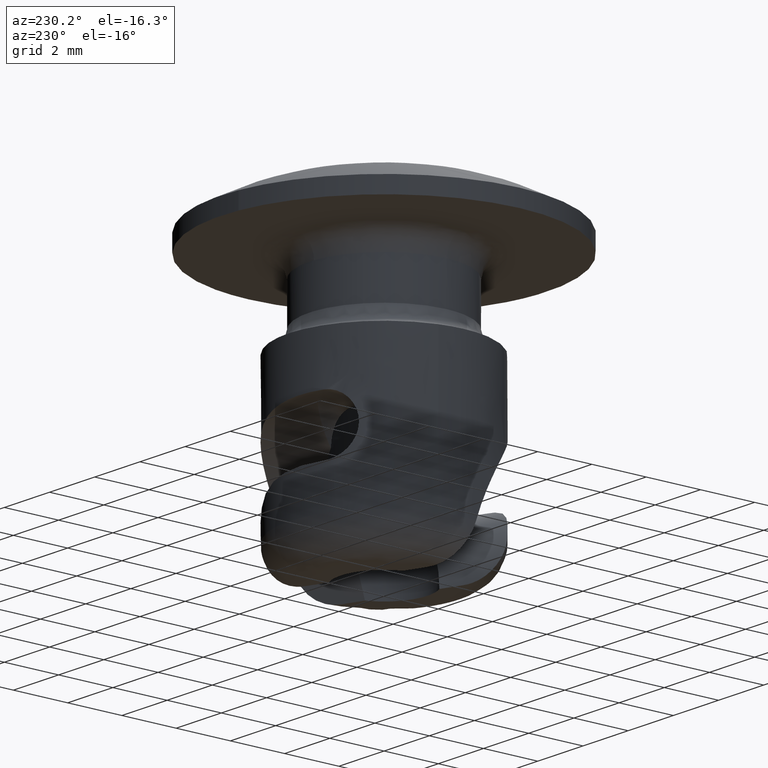
[diagram: clean part render]
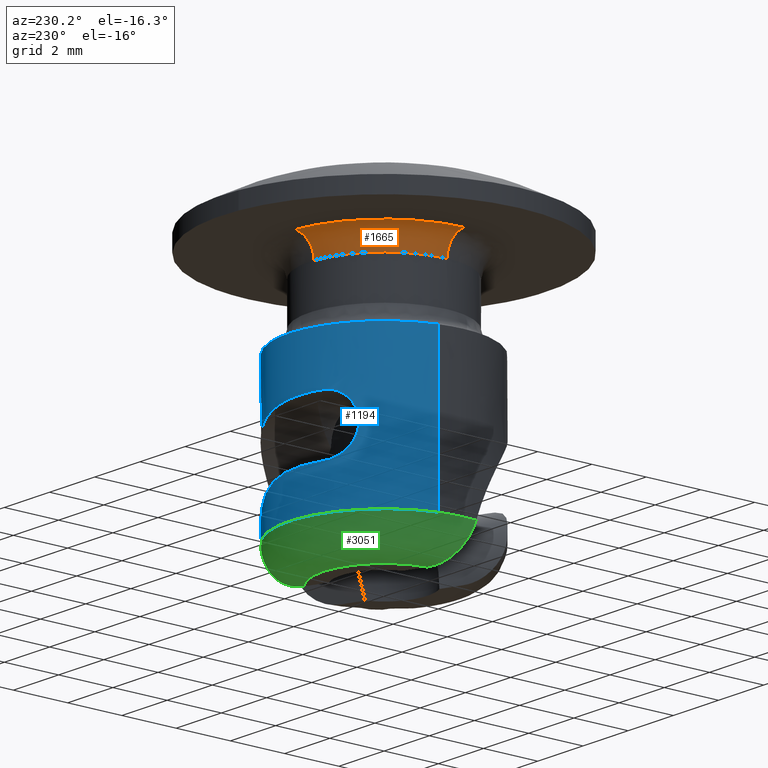
[diagram: same view with three faces highlighted in distinct colors, each labeled with its STEP entity id]
A machine part, auxiliary view with three faces highlighted in distinct colors.
Their STEP definitions:

[orange] entity #1665 — the highlighted face is a freeform B-spline surface patch.
#220=CARTESIAN_POINT('',(-2.749782871560368,-0.034556609689276,5.506410000058892));
#221=VERTEX_POINT('',#220);
#237=CARTESIAN_POINT('',(-2.750000000000000,0.0,5.506410000000090));
#238=VERTEX_POINT('',#237);
#239=CARTESIAN_POINT('',(-2.749782871560368,-0.034556609689276,5.506410000058892));
#240=CARTESIAN_POINT('',(-2.750000000000001,-0.017278986987755,5.506410000000090));
#241=CARTESIAN_POINT('',(-2.750000000000000,0.0,5.506410000000090));
#249=(BOUNDED_CURVE()B_SPLINE_CURVE(2,(#239,#240,#241),.UNSPECIFIED.,.F.,.U.)B_SPLINE_CURVE_WITH_KNOTS((3,3),(0.997784295920442,1.0),.UNSPECIFIED.)CURVE()GEOMETRIC_REPRESENTATION_ITEM()RATIONAL_B_SPLINE_CURVE((0.994854295641052,0.997404141200800,1.0))REPRESENTATION_ITEM(''));
#250=EDGE_CURVE('',#221,#238,#249,.T.);
#252=CARTESIAN_POINT('',(-0.191766441840072,2.743305603060657,5.506410000058894));
#253=VERTEX_POINT('',#252);
#254=CARTESIAN_POINT('',(-2.750000000000000,0.0,5.506410000000090));
#255=CARTESIAN_POINT('',(-2.750000000000001,2.564476329968949,5.506410000000090));
#256=CARTESIAN_POINT('',(-0.191766441840072,2.743305603060658,5.506410000058894));
#264=(BOUNDED_CURVE()B_SPLINE_CURVE(2,(#254,#255,#256),.UNSPECIFIED.,.F.,.U.)B_SPLINE_CURVE_WITH_KNOTS((3,3),(0.0,0.237833686534181),.UNSPECIFIED.)CURVE()GEOMETRIC_REPRESENTATION_ITEM()RATIONAL_B_SPLINE_CURVE((1.0,0.721360504034936,0.972879876385049))REPRESENTATION_ITEM(''));
#265=EDGE_CURVE('',#238,#253,#264,.T.);
#1546=CARTESIAN_POINT('',(-0.244066380535576,3.491479858247768,6.256410000000090));
#1547=VERTEX_POINT('',#1546);
#1548=CARTESIAN_POINT('',(-0.191766441840072,2.743305603060657,5.506410000058894));
#1549=CARTESIAN_POINT('',(-0.191766441840667,2.743305603178510,6.256409999616545));
#1550=CARTESIAN_POINT('',(-0.244066380535576,3.491479858247769,6.256410000000090));
#1558=(BOUNDED_CURVE()B_SPLINE_CURVE(2,(#1548,#1549,#1550),.UNSPECIFIED.,.F.,.U.)B_SPLINE_CURVE_WITH_KNOTS((3,3),(-1.725134643121006,-0.274865357242618),.UNSPECIFIED.)CURVE()GEOMETRIC_REPRESENTATION_ITEM()RATIONAL_B_SPLINE_CURVE((0.863472075316618,0.610566959980755,0.863472075189796))REPRESENTATION_ITEM(''));
#1559=EDGE_CURVE('',#253,#1547,#1558,.T.);
#1578=CARTESIAN_POINT('',(-3.499723654619406,-0.043981139611119,6.256410000000090));
#1579=VERTEX_POINT('',#1578);
#1595=CARTESIAN_POINT('',(-2.749782871560368,-0.034556609689276,5.506410000058892));
#1596=CARTESIAN_POINT('',(-2.749782871678087,-0.034556609680698,6.256409999812695));
#1597=CARTESIAN_POINT('',(-3.499723654619406,-0.043981139611119,6.256410000000090));
#1605=(BOUNDED_CURVE()B_SPLINE_CURVE(2,(#1595,#1596,#1597),.UNSPECIFIED.,.F.,.U.)B_SPLINE_CURVE_WITH_KNOTS((3,3),(-1.725134643121012,-0.274865356974418),.UNSPECIFIED.)CURVE()GEOMETRIC_REPRESENTATION_ITEM()RATIONAL_B_SPLINE_CURVE((0.883342149595686,0.624617224201979,0.883342149561637))REPRESENTATION_ITEM(''));
#1606=EDGE_CURVE('',#221,#1579,#1605,.T.);
#1614=CARTESIAN_POINT('',(-2.751598198290943,-0.034579422948556,5.454257251492286));
#1615=CARTESIAN_POINT('',(-2.784253395302196,2.563901800832275,5.454257251492287));
#1616=CARTESIAN_POINT('',(-0.191893040463748,2.745116653687233,5.454257251492285));
#1617=CARTESIAN_POINT('',(-2.691634693459497,-0.033825859657109,6.314562997459585));
#1618=CARTESIAN_POINT('',(-2.723578260384289,2.508028622067640,6.314562997459587));
#1619=CARTESIAN_POINT('',(-0.187711260120195,2.685294396270255,6.314562997459587));
#1620=CARTESIAN_POINT('',(-3.551872496394803,-0.044636495760342,6.254594515223158));
#1621=CARTESIAN_POINT('',(-3.594025124711199,3.309586514299048,6.254594515223159));
#1622=CARTESIAN_POINT('',(-0.247703175956468,3.543505860587885,6.254594515223158));
#1630=(BOUNDED_SURFACE()B_SPLINE_SURFACE(2,2,((#1614,#1617,#1620),(#1615,#1618,#1621),(#1616,#1619,#1622)),.UNSPECIFIED.,.F.,.F.,.U.)B_SPLINE_SURFACE_WITH_KNOTS((3,3),(3,3),(0.0,5.648433148033502),(0.0,1.366780487333569),.UNSPECIFIED.)GEOMETRIC_REPRESENTATION_ITEM()RATIONAL_B_SPLINE_SURFACE(((0.910479748892753,0.597479566409842,0.910479865848865),(0.654473338347797,0.429481761564039,0.654473422418483),(0.889999236049156,0.584039742022178,0.889999350374435)))REPRESENTATION_ITEM('')SURFACE());
#1631=ORIENTED_EDGE('',*,*,#265,.F.);
#1632=ORIENTED_EDGE('',*,*,#250,.F.);
#1633=ORIENTED_EDGE('',*,*,#1606,.T.);
#1634=CARTESIAN_POINT('',(-3.500000000000000,0.0,6.256410000000090));
#1635=VERTEX_POINT('',#1634);
#1636=CARTESIAN_POINT('',(-3.499723654619406,-0.043981139611119,6.256410000000090));
#1637=CARTESIAN_POINT('',(-3.500000000000001,-0.021991437992178,6.256410000000090));
#1638=CARTESIAN_POINT('',(-3.500000000000000,0.0,6.256410000000090));
#1646=(BOUNDED_CURVE()B_SPLINE_CURVE(2,(#1636,#1637,#1638),.UNSPECIFIED.,.F.,.U.)B_SPLINE_CURVE_WITH_KNOTS((3,3),(0.997784295919662,1.0),.UNSPECIFIED.)CURVE()GEOMETRIC_REPRESENTATION_ITEM()RATIONAL_B_SPLINE_CURVE((0.994854295639256,0.997404141199886,1.0))REPRESENTATION_ITEM(''));
#1647=EDGE_CURVE('',#1579,#1635,#1646,.T.);
#1648=ORIENTED_EDGE('',*,*,#1647,.T.);
#1649=CARTESIAN_POINT('',(-3.500000000000000,0.0,6.256410000000090));
#1650=CARTESIAN_POINT('',(-3.500000000000000,3.263878965367756,6.256410000000090));
#1651=CARTESIAN_POINT('',(-0.244066380535576,3.491479858247768,6.256410000000090));
#1659=(BOUNDED_CURVE()B_SPLINE_CURVE(2,(#1649,#1650,#1651),.UNSPECIFIED.,.F.,.U.)B_SPLINE_CURVE_WITH_KNOTS((3,3),(0.0,0.237833686531696),.UNSPECIFIED.)CURVE()GEOMETRIC_REPRESENTATION_ITEM()RATIONAL_B_SPLINE_CURVE((1.0,0.721360504037847,0.972879876379794))REPRESENTATION_ITEM(''));
#1660=EDGE_CURVE('',#1635,#1547,#1659,.T.);
#1661=ORIENTED_EDGE('',*,*,#1660,.T.);
#1662=ORIENTED_EDGE('',*,*,#1559,.F.);
#1663=EDGE_LOOP('',(#1631,#1632,#1633,#1648,#1661,#1662));
#1664=FACE_OUTER_BOUND('',#1663,.T.);
#1665=ADVANCED_FACE('',(#1664),#1630,.F.);

[blue] entity #1194 — the highlighted face is a freeform B-spline surface patch.
#952=CARTESIAN_POINT('',(-3.398815725841810,0.835494860409331,3.395160075000097));
#953=CARTESIAN_POINT('',(-3.246307044217863,1.455904308741450,3.395160075000097));
#954=CARTESIAN_POINT('',(-2.884441870294542,1.982421523514038,3.395160075000097));
#955=CARTESIAN_POINT('',(-0.902020346780504,4.866863393808579,3.395160075000097));
#956=CARTESIAN_POINT('',(1.982421523514038,2.884441870294542,3.395160075000097));
#957=CARTESIAN_POINT('',(4.866863393808579,0.902020346780504,3.395160075000097));
#958=CARTESIAN_POINT('',(2.884441870294542,-1.982421523514038,3.395160075000097));
#959=CARTESIAN_POINT('',(-3.398815725841810,0.835494860409331,-2.435811826875176));
#960=CARTESIAN_POINT('',(-3.246307044217863,1.455904308741450,-2.435811826875176));
#961=CARTESIAN_POINT('',(-2.884441870294542,1.982421523514038,-2.435811826875176));
#962=CARTESIAN_POINT('',(-0.902020346780504,4.866863393808579,-2.435811826875176));
#963=CARTESIAN_POINT('',(1.982421523514038,2.884441870294542,-2.435811826875176));
#964=CARTESIAN_POINT('',(4.866863393808579,0.902020346780504,-2.435811826875176));
#965=CARTESIAN_POINT('',(2.884441870294542,-1.982421523514038,-2.435811826875176));
#973=(BOUNDED_SURFACE()B_SPLINE_SURFACE(2,1,((#952,#959),(#953,#960),(#954,#961),(#955,#962),(#956,#963),(#957,#964),(#958,#965)),.UNSPECIFIED.,.F.,.F.,.U.)B_SPLINE_SURFACE_WITH_KNOTS((3,2,2,3),(2,2),(0.0,1.391757569573599,7.190747442796928,12.989737316020260),(0.0,5.830971901875274),.UNSPECIFIED.)GEOMETRIC_REPRESENTATION_ITEM()RATIONAL_B_SPLINE_SURFACE(((0.893152553776853,0.893152553776853),(0.929705627484771,0.929705627484771),(1.0,1.0),(0.707106781186548,0.707106781186548),(1.0,1.0),(0.707106781186548,0.707106781186548),(1.0,1.0)))REPRESENTATION_ITEM('')SURFACE());
#974=CARTESIAN_POINT('',(-3.398816158178961,0.835493101646163,3.256410000000096));
#975=VERTEX_POINT('',#974);
#976=CARTESIAN_POINT('',(3.498894662445767,0.087955334072597,3.256410000000090));
#977=VERTEX_POINT('',#976);
#978=CARTESIAN_POINT('',(-3.398816158178961,0.835493101646163,3.256410000000096));
#979=CARTESIAN_POINT('',(-2.743830119141661,3.499999999999999,3.256410000000090));
#980=CARTESIAN_POINT('',(0.0,3.500000000000000,3.256410000000090));
#981=CARTESIAN_POINT('',(3.413122566589230,3.500000000000000,3.256410000000091));
#982=CARTESIAN_POINT('',(3.498894662445766,0.087955334072597,3.256410000000091));
#990=(BOUNDED_CURVE()B_SPLINE_CURVE(2,(#978,#979,#980,#981,#982),.UNSPECIFIED.,.F.,.U.)B_SPLINE_CURVE_WITH_KNOTS((3,2,3),(0.040772388621164,0.250000000000000,0.495579891767602),.UNSPECIFIED.)CURVE()GEOMETRIC_REPRESENTATION_ITEM()RATIONAL_B_SPLINE_CURVE((0.920045217319222,0.754874605754410,1.0,0.712285260097311,0.989826157676590))REPRESENTATION_ITEM(''));
#991=EDGE_CURVE('',#975,#977,#990,.T.);
#992=ORIENTED_EDGE('',*,*,#991,.T.);
#993=CARTESIAN_POINT('',(3.500000000000000,0.0,3.256410000000090));
#994=VERTEX_POINT('',#993);
#995=CARTESIAN_POINT('',(3.498894662445767,0.087955334072597,3.256410000000090));
#996=CARTESIAN_POINT('',(3.500000000000000,0.043984612453891,3.256410000000091));
#997=CARTESIAN_POINT('',(3.500000000000000,0.0,3.256410000000090));
#1005=(BOUNDED_CURVE()B_SPLINE_CURVE(2,(#995,#996,#997),.UNSPECIFIED.,.F.,.U.)B_SPLINE_CURVE_WITH_KNOTS((3,3),(0.495579891767602,0.500000000000000),.UNSPECIFIED.)CURVE()GEOMETRIC_REPRESENTATION_ITEM()RATIONAL_B_SPLINE_CURVE((0.989826157676591,0.994821521089236,1.0))REPRESENTATION_ITEM(''));
#1006=EDGE_CURVE('',#977,#994,#1005,.T.);
#1007=ORIENTED_EDGE('',*,*,#1006,.T.);
#1008=CARTESIAN_POINT('',(2.884442388677703,-1.982420769254069,3.256410000000089));
#1009=VERTEX_POINT('',#1008);
#1010=CARTESIAN_POINT('',(3.500000000000000,0.0,3.256410000000090));
#1011=CARTESIAN_POINT('',(3.500000000000000,-1.086777680293766,3.256410000000090));
#1012=CARTESIAN_POINT('',(2.884442388677703,-1.982420769254069,3.256410000000089));
#1020=(BOUNDED_CURVE()B_SPLINE_CURVE(2,(#1010,#1011,#1012),.UNSPECIFIED.,.F.,.U.)B_SPLINE_CURVE_WITH_KNOTS((3,3),(0.500000000000000,0.597270521430131),.UNSPECIFIED.)CURVE()GEOMETRIC_REPRESENTATION_ITEM()RATIONAL_B_SPLINE_CURVE((1.0,0.886040495530665,0.860760194434542))REPRESENTATION_ITEM(''));
#1021=EDGE_CURVE('',#994,#1009,#1020,.T.);
#1022=ORIENTED_EDGE('',*,*,#1021,.T.);
#1023=CARTESIAN_POINT('',(2.884441633109506,-1.982421868620396,-2.293592999999901));
#1024=VERTEX_POINT('',#1023);
#1025=CARTESIAN_POINT('',(2.884442388677703,-1.982420769254069,3.256410000000089));
#1026=CARTESIAN_POINT('',(2.884441633109506,-1.982421868620396,-2.293592999999901));
#1027=QUASI_UNIFORM_CURVE('',1,(#1025,#1026),.UNSPECIFIED.,.F.,.U.);
#1028=EDGE_CURVE('',#1009,#1024,#1027,.T.);
#1029=ORIENTED_EDGE('',*,*,#1028,.T.);
#1030=CARTESIAN_POINT('',(3.462048954059370,0.514020466223215,-2.293592999999900));
#1031=VERTEX_POINT('',#1030);
#1032=CARTESIAN_POINT('',(3.462048954059370,0.514020466223215,-2.293592999999900));
#1033=CARTESIAN_POINT('',(3.664243010850260,-0.847804147440930,-2.293592999999900));
#1034=CARTESIAN_POINT('',(2.884441633109506,-1.982421868620396,-2.293592999999901));
#1042=(BOUNDED_CURVE()B_SPLINE_CURVE(2,(#1032,#1033,#1034),.UNSPECIFIED.,.F.,.U.)B_SPLINE_CURVE_WITH_KNOTS((3,3),(0.0,0.296886411692265),.UNSPECIFIED.)CURVE()GEOMETRIC_REPRESENTATION_ITEM()RATIONAL_B_SPLINE_CURVE((1.0,0.886746299966919,0.907986538388612))REPRESENTATION_ITEM(''));
#1043=EDGE_CURVE('',#1031,#1024,#1042,.T.);
#1044=ORIENTED_EDGE('',*,*,#1043,.F.);
#1045=CARTESIAN_POINT('',(-1.254288169734664,3.267531359796385,1.356406999995346));
#1046=VERTEX_POINT('',#1045);
#1047=CARTESIAN_POINT('',(-1.254288169734664,3.267531359796385,1.356406999995346));
#1048=CARTESIAN_POINT('',(-1.100683175382410,3.326494811410994,1.356406998907062));
#1049=CARTESIAN_POINT('',(-0.944790533507293,3.373972347839948,1.354254622283116));
#1050=CARTESIAN_POINT('',(-0.628633328105598,3.446902768426820,1.345395252280576));
#1051=CARTESIAN_POINT('',(-0.468367986013106,3.472352183352891,1.338690151162170));
#1052=CARTESIAN_POINT('',(-0.224669569724567,3.493733411170516,1.324201752360662));
#1053=CARTESIAN_POINT('',(-0.142545136104687,3.498050934913397,1.318596453628986));
#1054=CARTESIAN_POINT('',(0.020886090782546,3.500891776431745,1.305763019858450));
#1055=CARTESIAN_POINT('',(0.102140809863996,3.499444540438764,1.298546635512569));
#1056=CARTESIAN_POINT('',(0.344509582711421,3.486759597965622,1.274156262528755));
#1057=CARTESIAN_POINT('',(0.504236306555088,3.467210868745162,1.254271949412457));
#1058=CARTESIAN_POINT('',(0.740848327356909,3.421636322163811,1.217125497808508));
#1059=CARTESIAN_POINT('',(0.819220659129711,3.403727863453842,1.203516045418842));
#1060=CARTESIAN_POINT('',(0.974909943791326,3.362445011936071,1.173425822631740));
#1061=CARTESIAN_POINT('',(1.052321558858645,3.339008945847857,1.156905212574422));
#1062=CARTESIAN_POINT('',(1.278833701294926,3.261905881412759,1.103342238811839));
#1063=CARTESIAN_POINT('',(1.423604441200144,3.201146349320471,1.062073015453533));
#1064=CARTESIAN_POINT('',(1.700795407085736,3.062887940818047,0.965982079269239));
#1065=CARTESIAN_POINT('',(1.833286937047265,2.985327743126643,0.911129322560085));
#1066=CARTESIAN_POINT('',(2.085292452059911,2.815080481409319,0.785031404627501));
#1067=CARTESIAN_POINT('',(2.201634034771801,2.724572951189034,0.715368523373225));
#1068=CARTESIAN_POINT('',(2.416769619053139,2.535688229620949,0.561723737162134));
#1069=CARTESIAN_POINT('',(2.515554343379844,2.437298702059449,0.477744137820165));
#1070=CARTESIAN_POINT('',(2.651509271590506,2.285630818190037,0.340112871557593));
#1071=CARTESIAN_POINT('',(2.694798760009466,2.234352972746144,0.292240862819736));
#1072=CARTESIAN_POINT('',(2.776355931514163,2.132163526869883,0.193871461890681));
#1073=CARTESIAN_POINT('',(2.814790837875909,2.081073183510016,0.143216195046828));
#1074=CARTESIAN_POINT('',(2.923641800598898,1.928204046839833,-0.013163365357319));
#1075=CARTESIAN_POINT('',(2.987620403222888,1.826832213530367,-0.123295952511870));
#1076=CARTESIAN_POINT('',(3.072625961218844,1.676981694885327,-0.297416691746468));
#1077=CARTESIAN_POINT('',(3.099153561996510,1.627349909661012,-0.357004841036116));
#1078=CARTESIAN_POINT('',(3.148720474550142,1.529241610229750,-0.478941169849443));
#1079=CARTESIAN_POINT('',(3.171603378818524,1.481084083492248,-0.540888731516742));
#1080=CARTESIAN_POINT('',(3.277607651997858,1.245044962272204,-0.855448795942488));
#1081=CARTESIAN_POINT('',(3.335861178486806,1.071361401180477,-1.122418410192950));
#1082=CARTESIAN_POINT('',(3.398925770687722,0.838898008624155,-1.545777836786355));
#1083=CARTESIAN_POINT('',(3.415843330821927,0.765997516758701,-1.690956645037936));
#1084=CARTESIAN_POINT('',(3.443319145921051,0.631103094378931,-1.988293316062864));
#1085=CARTESIAN_POINT('',(3.453815021790554,0.569477940141505,-2.139592664110972));
#1086=CARTESIAN_POINT('',(3.462048954059370,0.514020466223215,-2.293592999999900));
#1087=B_SPLINE_CURVE_WITH_KNOTS('',3,(#1047,#1048,#1049,#1050,#1051,#1052,#1053,#1054,#1055,#1056,#1057,#1058,#1059,#1060,#1061,#1062,#1063,#1064,#1065,#1066,#1067,#1068,#1069,#1070,#1071,#1072,#1073,#1074,#1075,#1076,#1077,#1078,#1079,#1080,#1081,#1082,#1083,#1084,#1085,#1086),.UNSPECIFIED.,.F.,.U.,(4,2,2,2,2,2,2,2,2,2,2,2,2,2,2,2,2,2,2,4),(0.0,0.062500000000000,0.125000000000000,0.156250000000000,0.187500000000000,0.250000000000000,0.281250000000000,0.312500000000000,0.375000000000000,0.437500000000000,0.499999999999999,0.562499999999999,0.593749999999999,0.624999999999999,0.687499999999999,0.718749999999999,0.749999999999999,0.875000000000000,0.937500000000000,1.0),.UNSPECIFIED.);
#1088=EDGE_CURVE('',#1046,#1031,#1087,.T.);
#1089=ORIENTED_EDGE('',*,*,#1088,.F.);
#1090=CARTESIAN_POINT('',(-1.254288169733266,3.267531359792745,-0.743592999981045));
#1091=VERTEX_POINT('',#1090);
#1092=CARTESIAN_POINT('',(-1.254288169734664,3.267531359796385,1.356406999995346));
#1093=CARTESIAN_POINT('',(-1.318640292679726,3.242828886395304,1.356406999998266));
#1094=CARTESIAN_POINT('',(-1.383250967555114,3.215771566229313,1.349446387518911));
#1095=CARTESIAN_POINT('',(-1.506396947816417,3.159958582168519,1.322383416513524));
#1096=CARTESIAN_POINT('',(-1.565593721963290,3.130981195074045,1.302385653341678));
#1097=CARTESIAN_POINT('',(-1.650975945108165,3.086310121360740,1.262556716373821));
#1098=CARTESIAN_POINT('',(-1.678753664558891,3.071272873035793,1.247658640695796));
#1099=CARTESIAN_POINT('',(-1.732041834886683,3.041539414362044,1.215217216255150));
#1100=CARTESIAN_POINT('',(-1.783357937091223,3.011994050345980,1.179999036644839));
#1101=CARTESIAN_POINT('',(-1.830909973004578,2.983034465668133,1.139303816492363));
#1102=CARTESIAN_POINT('',(-1.876617923764876,2.954493378028794,1.095822597766510));
#1103=CARTESIAN_POINT('',(-1.898643800951814,2.940368223328008,1.072563898663637));
#1104=CARTESIAN_POINT('',(-1.960784565403558,2.899616901363788,0.999839552490939));
#1105=CARTESIAN_POINT('',(-1.997313057947114,2.874417805809055,0.947250069384687));
#1106=CARTESIAN_POINT('',(-2.061201922230871,2.828954543570813,0.833820281025321));
#1107=CARTESIAN_POINT('',(-2.088680221637820,2.808587239747783,0.772353782685355));
#1108=CARTESIAN_POINT('',(-2.132297222680015,2.775618112364556,0.645845959865920));
#1109=CARTESIAN_POINT('',(-2.148792449089345,2.762769034094861,0.580375322759702));
#1110=CARTESIAN_POINT('',(-2.165556062767151,2.749621313975188,0.478701182768291));
#1111=CARTESIAN_POINT('',(-2.169803205236735,2.746264146157594,0.444066258757339));
#1112=CARTESIAN_POINT('',(-2.175393383642448,2.741838130949924,0.375172765964497));
#1113=CARTESIAN_POINT('',(-2.178156509214443,2.739640101456890,0.306343781090040));
#1114=CARTESIAN_POINT('',(-2.175389909863488,2.741840864207265,0.237641426687876));
#1115=CARTESIAN_POINT('',(-2.169827383376525,2.746245020190678,0.169002869282833));
#1116=CARTESIAN_POINT('',(-2.165624451942747,2.749567523962095,0.134576173082601));
#1117=CARTESIAN_POINT('',(-2.148793976944024,2.762768138546281,0.032351411708997));
#1118=CARTESIAN_POINT('',(-2.132225841837084,2.775673251829054,-0.033291504237887));
#1119=CARTESIAN_POINT('',(-2.099475268970722,2.800426905912668,-0.128203132351538));
#1120=CARTESIAN_POINT('',(-2.087231008479274,2.809582339385131,-0.159243858528314));
#1121=CARTESIAN_POINT('',(-2.059973351040212,2.829628243700290,-0.220114977656545));
#1122=CARTESIAN_POINT('',(-2.045080289626168,2.840428204183158,-0.249652294240931));
#1123=CARTESIAN_POINT('',(-1.997069251679307,2.874588231476546,-0.334821954553750));
#1124=CARTESIAN_POINT('',(-1.960488793194713,2.899817264408992,-0.387422239855869));
#1125=CARTESIAN_POINT('',(-1.898315910148563,2.940580014908368,-0.460108073164582));
#1126=CARTESIAN_POINT('',(-1.876274708996551,2.954711433240136,-0.483358309709831));
#1127=CARTESIAN_POINT('',(-1.830548110955519,2.983256618331258,-0.526810471620576));
#1128=CARTESIAN_POINT('',(-1.806774986086904,2.997730425912688,-0.547132188705154));
#1129=CARTESIAN_POINT('',(-1.732677358652038,3.041565945032689,-0.603968311445947));
#1130=CARTESIAN_POINT('',(-1.679505047946575,3.071386434325273,-0.636443901954321));
#1131=CARTESIAN_POINT('',(-1.565317312642757,3.131123368022442,-0.689691187936058));
#1132=CARTESIAN_POINT('',(-1.506098562849207,3.160096911068468,-0.709645140379400));
#1133=CARTESIAN_POINT('',(-1.413986624371495,3.201839809888798,-0.729872725705113));
#1134=CARTESIAN_POINT('',(-1.382732743893786,3.215468949790660,-0.734985952051769));
#1135=CARTESIAN_POINT('',(-1.319075308918158,3.242102826485668,-0.741857015856361));
#1136=CARTESIAN_POINT('',(-1.286590389170131,3.255131695577767,-0.743593000002559));
#1137=CARTESIAN_POINT('',(-1.254288169733266,3.267531359792745,-0.743592999981045));
#1138=B_SPLINE_CURVE_WITH_KNOTS('',3,(#1092,#1093,#1094,#1095,#1096,#1097,#1098,#1099,#1100,#1101,#1102,#1103,#1104,#1105,#1106,#1107,#1108,#1109,#1110,#1111,#1112,#1113,#1114,#1115,#1116,#1117,#1118,#1119,#1120,#1121,#1122,#1123,#1124,#1125,#1126,#1127,#1128,#1129,#1130,#1131,#1132,#1133,#1134,#1135,#1136,#1137),.UNSPECIFIED.,.F.,.U.,(4,2,2,2,1,2,2,2,2,2,2,1,2,2,2,2,2,2,2,2,2,2,2,4),(0.0,0.062500000000000,0.125000000000000,0.156250000000000,0.187500000000000,0.218750000000000,0.250000000000000,0.312500000000000,0.375000000000000,0.437500000000000,0.468750000000000,0.500000000000000,0.531250000000000,0.562500000000000,0.625000000000000,0.656250000000000,0.687500000000000,0.750000000000000,0.781250000000000,0.812500000000000,0.875000000000000,0.937500000000000,0.968750000000000,1.0),.UNSPECIFIED.);
#1139=EDGE_CURVE('',#1046,#1091,#1138,.T.);
#1140=ORIENTED_EDGE('',*,*,#1139,.T.);
#1141=CARTESIAN_POINT('',(2.494594157352935,2.454994906328830,-2.293593000000170));
#1142=VERTEX_POINT('',#1141);
#1143=CARTESIAN_POINT('',(-1.254288169733266,3.267531359792745,-0.743592999981045));
#1144=CARTESIAN_POINT('',(-1.075116558128016,3.336308919381501,-0.743593001254240));
#1145=CARTESIAN_POINT('',(-0.892813837075880,3.389494553560205,-0.746453562931658));
#1146=CARTESIAN_POINT('',(-0.522261360808002,3.465982248554573,-0.759133667993743));
#1147=CARTESIAN_POINT('',(-0.333875025082096,3.489285430373020,-0.768942637021273));
#1148=CARTESIAN_POINT('',(0.048352543838576,3.504889067929446,-0.800264496639449));
#1149=CARTESIAN_POINT('',(0.236705209604217,3.496966781243916,-0.821370517473894));
#1150=CARTESIAN_POINT('',(0.607111760752527,3.451988026533865,-0.880781714174702));
#1151=CARTESIAN_POINT('',(0.789362252970535,3.414848219646579,-0.919082405920578));
#1152=CARTESIAN_POINT('',(1.145242480868056,3.312506722959716,-1.022598128103440));
#1153=CARTESIAN_POINT('',(1.312794088046505,3.249063239057828,-1.086153337552350));
#1154=CARTESIAN_POINT('',(1.547961798543114,3.140266602137924,-1.204897958632514));
#1155=CARTESIAN_POINT('',(1.623650613504035,3.101726075586596,-1.248394536573484));
#1156=CARTESIAN_POINT('',(1.769444056655930,3.020929276409970,-1.344400050151997));
#1157=CARTESIAN_POINT('',(1.838378427837772,2.979315627676157,-1.396171730781845));
#1158=CARTESIAN_POINT('',(2.032698235562576,2.853412920724831,-1.562324709383985));
#1159=CARTESIAN_POINT('',(2.146254359804557,2.767723364678925,-1.687888717089809));
#1160=CARTESIAN_POINT('',(2.270168294436041,2.664090781103838,-1.865327664543209));
#1161=CARTESIAN_POINT('',(2.294027547229279,2.643550320032409,-1.901833103648971));
#1162=CARTESIAN_POINT('',(2.339515052330367,2.603380495031388,-1.976154201304011));
#1163=CARTESIAN_POINT('',(2.361210279974833,2.583695873577137,-2.014062328266627));
#1164=CARTESIAN_POINT('',(2.423318331190845,2.526009041810384,-2.130022386037288));
#1165=CARTESIAN_POINT('',(2.460761208343860,2.489373583329972,-2.210305812590468));
#1166=CARTESIAN_POINT('',(2.494594157352935,2.454994906328830,-2.293593000000170));
#1167=B_SPLINE_CURVE_WITH_KNOTS('',3,(#1143,#1144,#1145,#1146,#1147,#1148,#1149,#1150,#1151,#1152,#1153,#1154,#1155,#1156,#1157,#1158,#1159,#1160,#1161,#1162,#1163,#1164,#1165,#1166),.UNSPECIFIED.,.F.,.U.,(4,2,2,2,2,2,2,2,2,2,2,4),(0.0,0.125000000000000,0.250000000000000,0.375000000000000,0.500000000000000,0.625000000000000,0.687500000000000,0.750000000000000,0.875000000000000,0.906250000000000,0.937500000000000,1.0),.UNSPECIFIED.);
#1168=EDGE_CURVE('',#1091,#1142,#1167,.T.);
#1169=ORIENTED_EDGE('',*,*,#1168,.T.);
#1170=CARTESIAN_POINT('',(-3.398816141377393,0.835493169995682,-2.293592999999918));
#1171=VERTEX_POINT('',#1170);
#1172=CARTESIAN_POINT('',(-3.398816141377393,0.835493169995682,-2.293592999999918));
#1173=CARTESIAN_POINT('',(-3.011913933969780,2.409425207860055,-2.293592999999901));
#1174=CARTESIAN_POINT('',(-1.561331248175789,3.132450276296470,-2.293592999999900));
#1175=CARTESIAN_POINT('',(0.712513817310259,4.265820335230386,-2.293592999999900));
#1176=CARTESIAN_POINT('',(2.494594157352935,2.454994906328830,-2.293593000000170));
#1184=(BOUNDED_CURVE()B_SPLINE_CURVE(2,(#1172,#1173,#1174,#1175,#1176),.UNSPECIFIED.,.F.,.U.)B_SPLINE_CURVE_WITH_KNOTS((3,2,3),(0.157367413092129,0.500000000000000,1.0),.UNSPECIFIED.)CURVE()GEOMETRIC_REPRESENTATION_ITEM()RATIONAL_B_SPLINE_CURVE((0.917725445186630,0.869295438622348,1.0,0.809264258024592,1.0))REPRESENTATION_ITEM(''));
#1185=EDGE_CURVE('',#1171,#1142,#1184,.T.);
#1186=ORIENTED_EDGE('',*,*,#1185,.F.);
#1187=CARTESIAN_POINT('',(-3.398816158178961,0.835493101646163,3.256410000000096));
#1188=CARTESIAN_POINT('',(-3.398816141377393,0.835493169995682,-2.293592999999918));
#1189=QUASI_UNIFORM_CURVE('',1,(#1187,#1188),.UNSPECIFIED.,.F.,.U.);
#1190=EDGE_CURVE('',#975,#1171,#1189,.T.);
#1191=ORIENTED_EDGE('',*,*,#1190,.F.);
#1192=EDGE_LOOP('',(#992,#1007,#1022,#1029,#1044,#1089,#1140,#1169,#1186,#1191));
#1193=FACE_OUTER_BOUND('',#1192,.T.);
#1194=ADVANCED_FACE('',(#1193),#973,.T.);

[green] entity #3051 — the highlighted face is a freeform B-spline surface patch.
#1141=CARTESIAN_POINT('',(2.494594157352935,2.454994906328830,-2.293593000000170));
#1142=VERTEX_POINT('',#1141);
#1170=CARTESIAN_POINT('',(-3.398816141377393,0.835493169995682,-2.293592999999918));
#1171=VERTEX_POINT('',#1170);
#1172=CARTESIAN_POINT('',(-3.398816141377393,0.835493169995682,-2.293592999999918));
#1173=CARTESIAN_POINT('',(-3.011913933969780,2.409425207860055,-2.293592999999901));
#1174=CARTESIAN_POINT('',(-1.561331248175789,3.132450276296470,-2.293592999999900));
#1175=CARTESIAN_POINT('',(0.712513817310259,4.265820335230386,-2.293592999999900));
#1176=CARTESIAN_POINT('',(2.494594157352935,2.454994906328830,-2.293593000000170));
#1184=(BOUNDED_CURVE()B_SPLINE_CURVE(2,(#1172,#1173,#1174,#1175,#1176),.UNSPECIFIED.,.F.,.U.)B_SPLINE_CURVE_WITH_KNOTS((3,2,3),(0.157367413092129,0.500000000000000,1.0),.UNSPECIFIED.)CURVE()GEOMETRIC_REPRESENTATION_ITEM()RATIONAL_B_SPLINE_CURVE((0.917725445186630,0.869295438622348,1.0,0.809264258024592,1.0))REPRESENTATION_ITEM(''));
#1185=EDGE_CURVE('',#1171,#1142,#1184,.T.);
#1229=CARTESIAN_POINT('',(-3.462048954059370,-0.514020466223203,-2.293592999999935));
#1230=VERTEX_POINT('',#1229);
#1231=CARTESIAN_POINT('',(-3.462048954059370,-0.514020466223203,-2.293592999999935));
#1232=CARTESIAN_POINT('',(-3.563155391631683,0.166955213632094,-2.293592999999925));
#1233=CARTESIAN_POINT('',(-3.398816141377393,0.835493169995682,-2.293592999999918));
#1241=(BOUNDED_CURVE()B_SPLINE_CURVE(2,(#1231,#1232,#1233),.UNSPECIFIED.,.F.,.U.)B_SPLINE_CURVE_WITH_KNOTS((3,3),(0.0,0.157367413092129),.UNSPECIFIED.)CURVE()GEOMETRIC_REPRESENTATION_ITEM()RATIONAL_B_SPLINE_CURVE((1.0,0.939968819402245,0.917725445186630))REPRESENTATION_ITEM(''));
#1242=EDGE_CURVE('',#1230,#1171,#1241,.T.);
#2305=CARTESIAN_POINT('',(-2.234086913325940,0.267124625514370,-3.543592999999905));
#2306=VERTEX_POINT('',#2305);
#2307=CARTESIAN_POINT('',(-3.462048954059370,-0.514020466223203,-2.293592999999935));
#2308=CARTESIAN_POINT('',(-3.466520936112482,-0.483900613403848,-2.377233078083168));
#2309=CARTESIAN_POINT('',(-3.462261446604220,-0.453297991274551,-2.459589166846619));
#2310=CARTESIAN_POINT('',(-3.443303781216656,-0.406410386184385,-2.581164612434853));
#2311=CARTESIAN_POINT('',(-3.434875022025598,-0.390613498027555,-2.621360018674730));
#2312=CARTESIAN_POINT('',(-3.413712932025828,-0.358592510517279,-2.701045450037159));
#2313=CARTESIAN_POINT('',(-3.400913754697018,-0.342318701322815,-2.740643125948168));
#2314=CARTESIAN_POINT('',(-3.356859094383981,-0.293747519396130,-2.855752456070089));
#2315=CARTESIAN_POINT('',(-3.319829786384801,-0.261380601487175,-2.928443509355168));
#2316=CARTESIAN_POINT('',(-3.253119260807227,-0.212117392207595,-3.031245457366329));
#2317=CARTESIAN_POINT('',(-3.228921477610792,-0.195520153312598,-3.064573417679084));
#2318=CARTESIAN_POINT('',(-3.177079303227512,-0.162187703508136,-3.128545387694549));
#2319=CARTESIAN_POINT('',(-3.149681443874019,-0.145602488933543,-3.158910101556512));
#2320=CARTESIAN_POINT('',(-3.063278910468456,-0.095880029603225,-3.245261047811516));
#2321=CARTESIAN_POINT('',(-3.000097813163394,-0.062774160020656,-3.296539784913009));
#2322=CARTESIAN_POINT('',(-2.897185074890933,-0.012417843124915,-3.363811869612843));
#2323=CARTESIAN_POINT('',(-2.861514724056327,0.004476960937229,-3.384585642046245));
#2324=CARTESIAN_POINT('',(-2.788967642703653,0.037915901147333,-3.422065245912390));
#2325=CARTESIAN_POINT('',(-2.714859937741858,0.071180478601861,-3.455723508377339));
#2326=CARTESIAN_POINT('',(-2.637792671119623,0.104286869101829,-3.481940021104589));
#2327=CARTESIAN_POINT('',(-2.559286364368184,0.137386978258455,-3.504458252996118));
#2328=CARTESIAN_POINT('',(-2.519169497840585,0.153992315693095,-3.513893325522962));
#2329=CARTESIAN_POINT('',(-2.397674936892839,0.203468970889324,-3.536397302515123));
#2330=CARTESIAN_POINT('',(-2.316121947276280,0.235634313286026,-3.543593001355547));
#2331=CARTESIAN_POINT('',(-2.234086913325940,0.267124625514370,-3.543592999999905));
#2332=B_SPLINE_CURVE_WITH_KNOTS('',3,(#2307,#2308,#2309,#2310,#2311,#2312,#2313,#2314,#2315,#2316,#2317,#2318,#2319,#2320,#2321,#2322,#2323,#2324,#2325,#2326,#2327,#2328,#2329,#2330,#2331),.UNSPECIFIED.,.F.,.U.,(4,2,2,2,2,2,2,2,2,1,2,2,4),(0.0,0.125000000000000,0.187500000000000,0.250000000000000,0.375000000000001,0.437500000000001,0.500000000000001,0.625000000000001,0.687500000000000,0.750000000000000,0.812500000000000,0.875000000000000,1.0),.UNSPECIFIED.);
#2333=EDGE_CURVE('',#1230,#2306,#2332,.T.);
#2541=CARTESIAN_POINT('',(1.481521576788936,1.693397094415515,-3.543592999999900));
#2542=VERTEX_POINT('',#2541);
#2548=CARTESIAN_POINT('',(2.494594157352935,2.454994906328830,-2.293593000000170));
#2549=CARTESIAN_POINT('',(2.525060286342464,2.424037356405578,-2.368592025162582));
#2550=CARTESIAN_POINT('',(2.545622849602008,2.392507131618944,-2.445536281936187));
#2551=CARTESIAN_POINT('',(2.560162331232892,2.343938595684951,-2.564019439444210));
#2552=CARTESIAN_POINT('',(2.562244234420207,2.327407154092226,-2.604325076995444));
#2553=CARTESIAN_POINT('',(2.560528259753233,2.294612158668757,-2.683888560416499));
#2554=CARTESIAN_POINT('',(2.553053462775493,2.261989166318078,-2.762639108222006));
#2555=CARTESIAN_POINT('',(2.534194901064490,2.229382344630016,-2.839646862620479));
#2556=CARTESIAN_POINT('',(2.509524325051958,2.196575566413179,-2.915677501873989));
#2557=CARTESIAN_POINT('',(2.494335843632049,2.180193696691495,-2.952907223062079));
#2558=CARTESIAN_POINT('',(2.459200587687831,2.147933335071068,-3.024198635678386));
#2559=CARTESIAN_POINT('',(2.439176729040298,2.131948246176655,-3.058509627772739));
#2560=CARTESIAN_POINT('',(2.394444713212992,2.100006579208117,-3.124470241112341));
#2561=CARTESIAN_POINT('',(2.369560492272720,2.083950631116310,-3.156302409199464));
#2562=CARTESIAN_POINT('',(2.289460565003134,2.036284448005234,-3.246092009014299));
#2563=CARTESIAN_POINT('',(2.229093999555120,2.005202526913043,-3.298414123586989));
#2564=CARTESIAN_POINT('',(2.129568271131123,1.958118791032268,-3.366372625103757));
#2565=CARTESIAN_POINT('',(2.094897224070784,1.942366795856776,-3.387208268627862));
#2566=CARTESIAN_POINT('',(2.024136079359609,1.911155689195715,-3.424633163135800));
#2567=CARTESIAN_POINT('',(1.987873292186973,1.895614208863496,-3.441346307514110));
#2568=CARTESIAN_POINT('',(1.913739481529352,1.864487386932240,-3.470967959581818));
#2569=CARTESIAN_POINT('',(1.875867898849089,1.848902444412918,-3.483875556994660));
#2570=CARTESIAN_POINT('',(1.798605640559295,1.817559996903799,-3.505966411493014));
#2571=CARTESIAN_POINT('',(1.759285382560771,1.801832930974153,-3.515108278104711));
#2572=CARTESIAN_POINT('',(1.641221292160069,1.755076592276609,-3.536712185907898));
#2573=CARTESIAN_POINT('',(1.561711357362552,1.724179080030547,-3.543593001325574));
#2574=CARTESIAN_POINT('',(1.481521576788936,1.693397094415515,-3.543592999999900));
#2575=B_SPLINE_CURVE_WITH_KNOTS('',3,(#2548,#2549,#2550,#2551,#2552,#2553,#2554,#2555,#2556,#2557,#2558,#2559,#2560,#2561,#2562,#2563,#2564,#2565,#2566,#2567,#2568,#2569,#2570,#2571,#2572,#2573,#2574),.UNSPECIFIED.,.F.,.U.,(4,2,2,1,2,2,2,2,2,2,2,2,2,4),(0.0,0.125000000000000,0.187500000000000,0.250000000000000,0.312500000000001,0.375000000000001,0.437500000000001,0.500000000000001,0.625000000000001,0.687500000000000,0.750000000000000,0.812500000000000,0.875000000000000,1.0),.UNSPECIFIED.);
#2576=EDGE_CURVE('',#1142,#2542,#2575,.T.);
#3001=CARTESIAN_POINT('',(-2.234086913325940,0.267124625514370,-3.543592999999905));
#3002=CARTESIAN_POINT('',(-2.073004704235737,1.614329715994023,-3.543592999999901));
#3003=CARTESIAN_POINT('',(-0.806319995610524,2.100558965252775,-3.543592999999900));
#3004=CARTESIAN_POINT('',(0.460364713014687,2.586788214511528,-3.543592999999901));
#3005=CARTESIAN_POINT('',(1.481521576788936,1.693397094415515,-3.543592999999900));
#3013=(BOUNDED_CURVE()B_SPLINE_CURVE(2,(#3001,#3002,#3003,#3004,#3005),.UNSPECIFIED.,.F.,.U.)B_SPLINE_CURVE_WITH_KNOTS((3,2,3),(0.0,0.500000000000000,1.0),.UNSPECIFIED.)CURVE()GEOMETRIC_REPRESENTATION_ITEM()RATIONAL_B_SPLINE_CURVE((1.0,0.856348839899366,1.0,0.856348839899366,1.0))REPRESENTATION_ITEM(''));
#3014=EDGE_CURVE('',#2306,#2542,#3013,.T.);
#3021=CARTESIAN_POINT('',(-3.371500837255073,-0.928337588532219,-2.206671552915546));
#3022=CARTESIAN_POINT('',(-4.158159201302516,1.928618076931087,-2.206671552915546));
#3023=CARTESIAN_POINT('',(-1.469028955151145,3.173449621913196,-2.206671552915546));
#3024=CARTESIAN_POINT('',(1.224119537624747,4.420141262798388,-2.206671552915546));
#3025=CARTESIAN_POINT('',(2.892252421419645,1.965630815968674,-2.206671552915546));
#3026=CARTESIAN_POINT('',(-3.467861975097667,-0.954870480158562,-3.640514542103694));
#3027=CARTESIAN_POINT('',(-4.277003885408955,1.983740066017758,-3.640514542103694));
#3028=CARTESIAN_POINT('',(-1.511015390414005,3.264150241967817,-3.640514542103695));
#3029=CARTESIAN_POINT('',(1.259106197036912,4.546473677372257,-3.640514542103694));
#3030=CARTESIAN_POINT('',(2.974916121566581,2.021810669140362,-3.640514542103694));
#3031=CARTESIAN_POINT('',(-2.085466066776982,-0.574229885398378,-3.540567200231994));
#3032=CARTESIAN_POINT('',(-2.572059249919390,1.192960568411738,-3.540567200231994));
#3033=CARTESIAN_POINT('',(-0.908678415033352,1.962960064549293,-3.540567200231994));
#3034=CARTESIAN_POINT('',(0.757187935172979,2.734110136372303,-3.540567200231994));
#3035=CARTESIAN_POINT('',(1.789023515810533,1.215855064076228,-3.540567200231994));
#3043=(BOUNDED_SURFACE()B_SPLINE_SURFACE(2,2,((#3021,#3026,#3031),(#3022,#3027,#3032),(#3023,#3028,#3033),(#3024,#3029,#3034),(#3025,#3030,#3035)),.UNSPECIFIED.,.F.,.F.,.U.)B_SPLINE_SURFACE_WITH_KNOTS((3,2,3),(3,3),(0.0,5.129426548745406,10.264628420134519),(0.0,2.277967578180734),.UNSPECIFIED.)GEOMETRIC_REPRESENTATION_ITEM()RATIONAL_B_SPLINE_SURFACE(((0.897347511813492,0.588861807847500,0.897347523114483),(0.692915075020045,0.454708146386320,0.692915083746460),(0.919258317431990,0.603240224723955,0.919258329008921),(0.692660230693739,0.454540911186208,0.692660239416944),(0.897808406940947,0.589164258720108,0.897808418247742)))REPRESENTATION_ITEM('')SURFACE());
#3044=ORIENTED_EDGE('',*,*,#2333,.F.);
#3045=ORIENTED_EDGE('',*,*,#1242,.T.);
#3046=ORIENTED_EDGE('',*,*,#1185,.T.);
#3047=ORIENTED_EDGE('',*,*,#2576,.T.);
#3048=ORIENTED_EDGE('',*,*,#3014,.F.);
#3049=EDGE_LOOP('',(#3044,#3045,#3046,#3047,#3048));
#3050=FACE_OUTER_BOUND('',#3049,.T.);
#3051=ADVANCED_FACE('',(#3050),#3043,.T.);